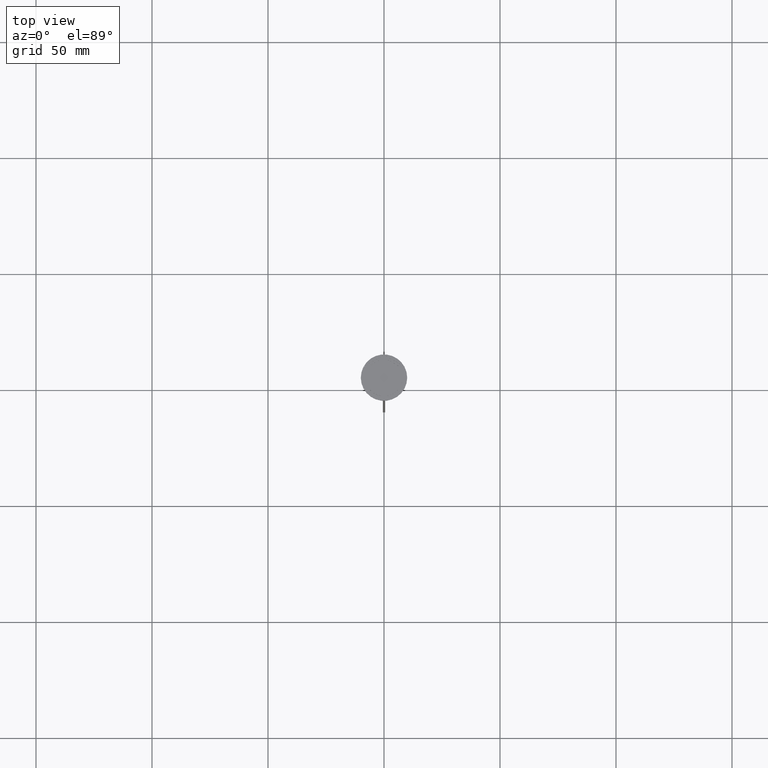
[diagram: clean part render]
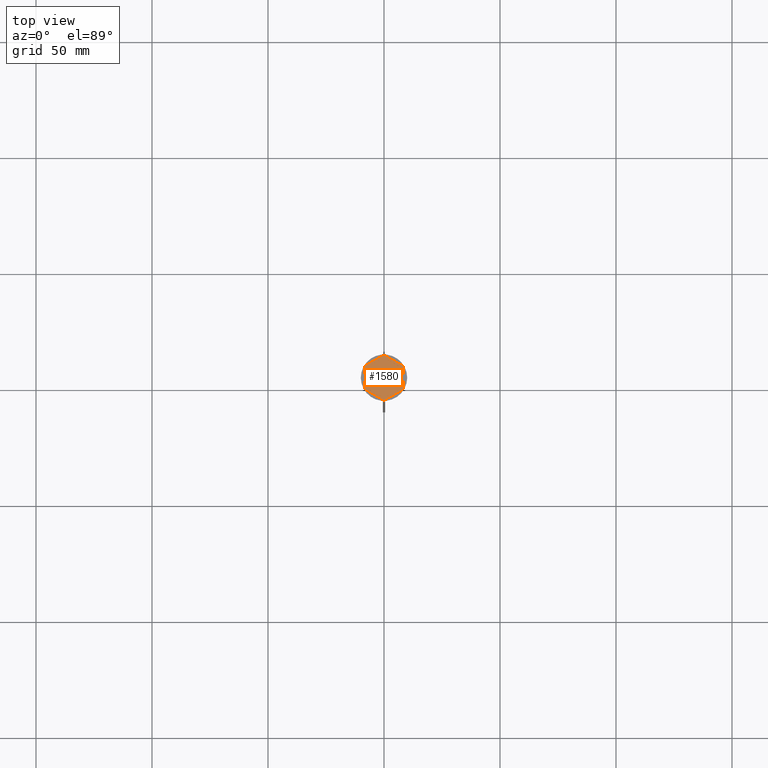
[diagram: same view with one face highlighted and labeled with its STEP entity id]
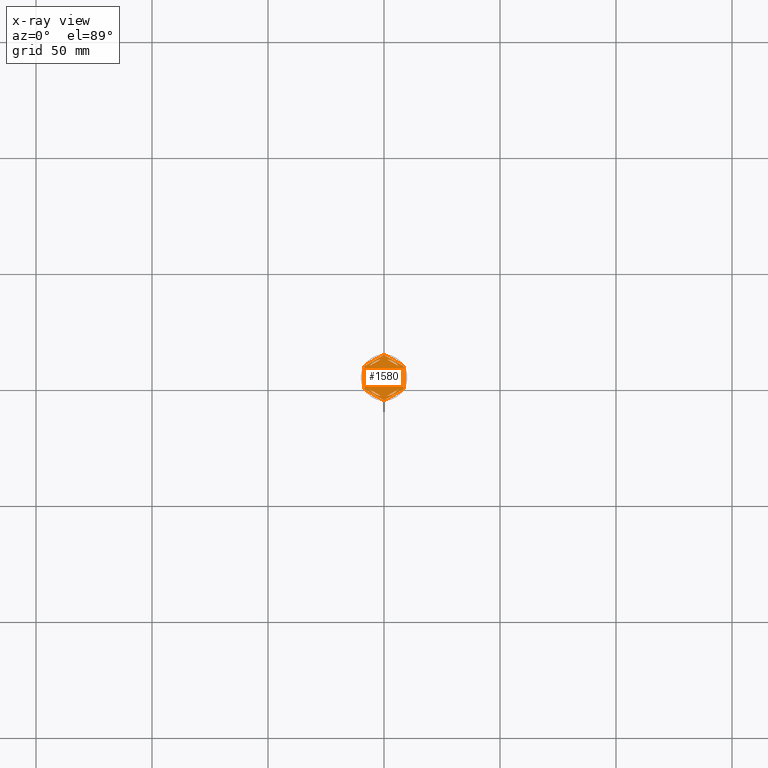
[diagram: x-ray of the same camera — body ghosted, the highlighted face saturated]
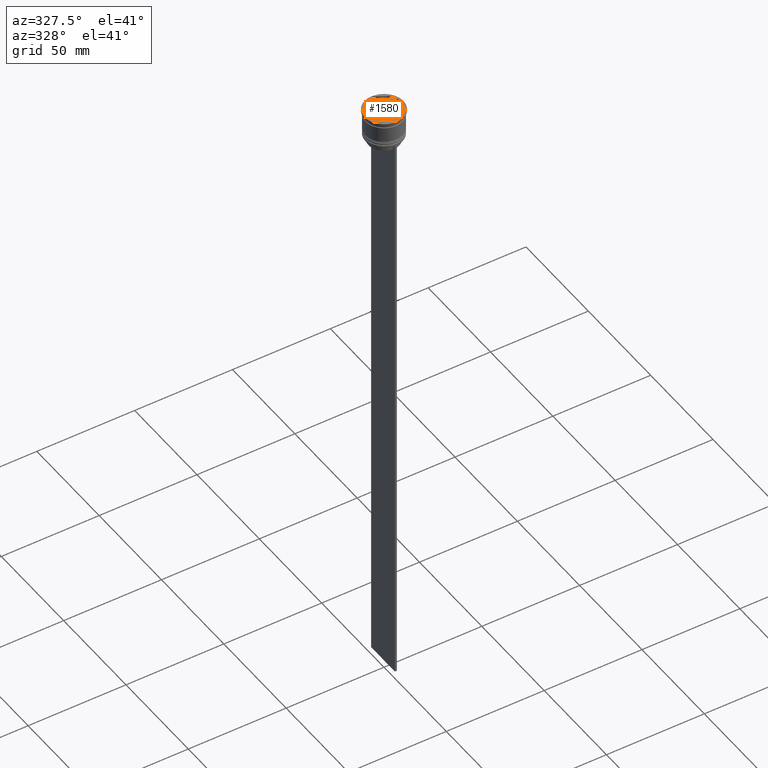
[diagram: same view with one face highlighted and labeled with its STEP entity id]
A machine part, top view. The second image highlights one B-rep face of the part: STEP entity #1580.
The next image is the same camera in x-ray: the body ghosted, the highlighted face saturated — about 0% of this face is hidden behind the body in this view.
A second angle (auxiliary view) of the same face is appended — the face is thin or edge-on in the first view.
In plain terms, the highlighted planar face has unit normal (0, 0, 1).
Its self-contained STEP definition (entity closure, byte-faithful):
#7 = CIRCLE ( 'NONE', #2391, 9.699999999999990408 ) ;
#8 = EDGE_CURVE ( 'NONE', #2185, #1926, #1032, .T. ) ;
#13 = ORIENTED_EDGE ( 'NONE', *, *, #237, .T. ) ;
#19 = AXIS2_PLACEMENT_3D ( 'NONE', #1886, #1666, #240 ) ;
#21 = CARTESIAN_POINT ( 'NONE',  ( 0.000000000000000000, 0.000000000000000000, -1.000000000000000000 ) ) ;
#22 = VERTEX_POINT ( 'NONE', #2213 ) ;
#42 = PLANE ( 'NONE',  #1484 ) ;
#43 = CARTESIAN_POINT ( 'NONE',  ( 0.000000000000000000, 0.000000000000000000, -1.000000000000000000 ) ) ;
#49 = ORIENTED_EDGE ( 'NONE', *, *, #510, .F. ) ;
#55 = CIRCLE ( 'NONE', #2307, 8.000000000000000000 ) ;
#59 = EDGE_CURVE ( 'NONE', #551, #1256, #1467, .T. ) ;
#74 = CARTESIAN_POINT ( 'NONE',  ( -7.500000000000000000, 2.783882181415010759, -1.000000000000000888 ) ) ;
#77 = DIRECTION ( 'NONE',  ( 0.8660254037844387076, -0.4999999999999997780, 0.000000000000000000 ) ) ;
#84 = DIRECTION ( 'NONE',  ( -0.000000000000000000, -0.000000000000000000, -1.000000000000000000 ) ) ;
#92 = CIRCLE ( 'NONE', #1956, 9.699999999999990408 ) ;
#94 = VECTOR ( 'NONE', #703, 1000.000000000000000 ) ;
#107 = DIRECTION ( 'NONE',  ( 1.000000000000000000, 2.486899575160350651E-14, 0.000000000000000000 ) ) ;
#124 = DIRECTION ( 'NONE',  ( 1.000000000000000000, 0.000000000000000000, 0.000000000000000000 ) ) ;
#145 = CARTESIAN_POINT ( 'NONE',  ( 1.339087309751762156, -7.887131619090794743, -1.000000000000000888 ) ) ;
#182 = LINE ( 'NONE', #1007, #2218 ) ;
#197 = CARTESIAN_POINT ( 'NONE',  ( -0.2027787310304009494, 9.697880221277303647, -1.000000000000000000 ) ) ;
#214 = FACE_BOUND ( 'NONE', #914, .T. ) ;
#219 = DIRECTION ( 'NONE',  ( 0.8660254037844387076, 0.5000000000000001110, -0.000000000000000000 ) ) ;
#224 = VECTOR ( 'NONE', #1945, 1000.000000000000114 ) ;
#225 = CIRCLE ( 'NONE', #1826, 8.000000000000000000 ) ;
#237 = EDGE_CURVE ( 'NONE', #1076, #1186, #2623, .T. ) ;
#240 = DIRECTION ( 'NONE',  ( 1.000000000000000000, 0.000000000000000000, 0.000000000000000000 ) ) ;
#246 = EDGE_CURVE ( 'NONE', #22, #2005, #1438, .T. ) ;
#269 = CARTESIAN_POINT ( 'NONE',  ( 7.500000000000000000, -4.330127018922195425, -1.000000000000000888 ) ) ;
#271 = CARTESIAN_POINT ( 'NONE',  ( 8.500000000000000000, 4.673328578219146934, -1.000000000000000000 ) ) ;
#308 = CARTESIAN_POINT ( 'NONE',  ( -1.301042606982605321E-15, -8.660254037844387298, -1.000000000000000888 ) ) ;
#314 = DIRECTION ( 'NONE',  ( 0.000000000000000000, 0.000000000000000000, 1.000000000000000000 ) ) ;
#323 = LINE ( 'NONE', #1181, #1228 ) ;
#349 = AXIS2_PLACEMENT_3D ( 'NONE', #1723, #1995, #107 ) ;
#355 = CARTESIAN_POINT ( 'NONE',  ( -8.297221268969593666, -5.024551643058157602, -1.000000000000000000 ) ) ;
#437 = CIRCLE ( 'NONE', #349, 9.699999999999990408 ) ;
#441 = VECTOR ( 'NONE', #1457, 1000.000000000000000 ) ;
#447 = FACE_BOUND ( 'NONE', #1792, .T. ) ;
#489 = CARTESIAN_POINT ( 'NONE',  ( 8.729740977282959667E-16, -9.814954576223637872, -1.000000000000000000 ) ) ;
#497 = DIRECTION ( 'NONE',  ( 1.000000000000000000, 0.000000000000000000, 0.000000000000000000 ) ) ;
#505 = VERTEX_POINT ( 'NONE', #922 ) ;
#510 = EDGE_CURVE ( 'NONE', #2260, #1186, #437, .T. ) ;
#536 = DIRECTION ( 'NONE',  ( 1.000000000000000000, 0.000000000000000000, 0.000000000000000000 ) ) ;
#538 = EDGE_CURVE ( 'NONE', #551, #608, #7, .T. ) ;
#544 = CARTESIAN_POINT ( 'NONE',  ( 7.500000000000000000, -2.783882181415009427, -1.000000000000000888 ) ) ;
#550 = LINE ( 'NONE', #2021, #2483 ) ;
#551 = VERTEX_POINT ( 'NONE', #1771 ) ;
#565 = EDGE_CURVE ( 'NONE', #505, #1035, #876, .T. ) ;
#597 = DIRECTION ( 'NONE',  ( -0.8660254037844388186, 0.4999999999999997224, 0.000000000000000000 ) ) ;
#599 = ORIENTED_EDGE ( 'NONE', *, *, #1137, .F. ) ;
#608 = VERTEX_POINT ( 'NONE', #1339 ) ;
#634 = DIRECTION ( 'NONE',  ( 1.000000000000000000, 0.000000000000000000, 0.000000000000000000 ) ) ;
#640 = LINE ( 'NONE', #1192, #1960 ) ;
#659 = EDGE_CURVE ( 'NONE', #777, #1185, #225, .T. ) ;
#681 = LINE ( 'NONE', #269, #94 ) ;
#688 = ORIENTED_EDGE ( 'NONE', *, *, #2323, .F. ) ;
#695 = ORIENTED_EDGE ( 'NONE', *, *, #2241, .F. ) ;
#698 = CARTESIAN_POINT ( 'NONE',  ( -8.500000000000000000, -4.907477288111819824, -1.000000000000000000 ) ) ;
#699 = EDGE_LOOP ( 'NONE', ( #1661, #688 ) ) ;
#703 = DIRECTION ( 'NONE',  ( -2.003086131649545704E-16, -1.000000000000000000, 0.000000000000000000 ) ) ;
#730 = DIRECTION ( 'NONE',  ( 0.8660254037844385966, 0.5000000000000000000, 0.000000000000000000 ) ) ;
#747 = VECTOR ( 'NONE', #597, 1000.000000000000000 ) ;
#773 = DIRECTION ( 'NONE',  ( -0.8660254037844387076, -0.4999999999999997780, 0.000000000000000000 ) ) ;
#777 = VERTEX_POINT ( 'NONE', #1352 ) ;
#801 = AXIS2_PLACEMENT_3D ( 'NONE', #1285, #1476, #1917 ) ;
#807 = CARTESIAN_POINT ( 'NONE',  ( -6.160912690248241397, 5.103249437675783540, -1.000000000000000888 ) ) ;
#817 = VERTEX_POINT ( 'NONE', #1209 ) ;
#837 = CARTESIAN_POINT ( 'NONE',  ( 6.160912690248236068, -5.103249437675787981, -1.000000000000000888 ) ) ;
#857 = ORIENTED_EDGE ( 'NONE', *, *, #659, .F. ) ;
#858 = VERTEX_POINT ( 'NONE', #1434 ) ;
#860 = FACE_BOUND ( 'NONE', #1523, .T. ) ;
#872 = DIRECTION ( 'NONE',  ( 0.000000000000000000, 0.000000000000000000, 1.000000000000000000 ) ) ;
#876 = CIRCLE ( 'NONE', #2516, 8.000000000000000000 ) ;
#908 = ORIENTED_EDGE ( 'NONE', *, *, #1119, .F. ) ;
#914 = EDGE_LOOP ( 'NONE', ( #2198, #1510 ) ) ;
#922 = CARTESIAN_POINT ( 'NONE',  ( -8.000000000000000000, 0.000000000000000000, -1.000000000000000000 ) ) ;
#924 = CARTESIAN_POINT ( 'NONE',  ( -7.500000000000000000, -2.783882181415010759, -1.000000000000000888 ) ) ;
#931 = DIRECTION ( 'NONE',  ( 1.000000000000000000, 0.000000000000000000, 0.000000000000000000 ) ) ;
#952 = ORIENTED_EDGE ( 'NONE', *, *, #1717, .T. ) ;
#955 = CARTESIAN_POINT ( 'NONE',  ( -8.500000000000000000, -4.673328578219146934, -1.000000000000000000 ) ) ;
#968 = EDGE_CURVE ( 'NONE', #817, #1769, #681, .T. ) ;
#980 = DIRECTION ( 'NONE',  ( 0.000000000000000000, 0.000000000000000000, 1.000000000000000000 ) ) ;
#981 = CARTESIAN_POINT ( 'NONE',  ( 0.000000000000000000, 0.000000000000000000, -1.000000000000000000 ) ) ;
#987 = ORIENTED_EDGE ( 'NONE', *, *, #2174, .T. ) ;
#990 = LINE ( 'NONE', #1238, #441 ) ;
#998 = CARTESIAN_POINT ( 'NONE',  ( 8.297221268969593666, 5.024551643058155825, -1.000000000000000000 ) ) ;
#999 = VECTOR ( 'NONE', #77, 1000.000000000000114 ) ;
#1005 = AXIS2_PLACEMENT_3D ( 'NONE', #1919, #872, #2551 ) ;
#1007 = CARTESIAN_POINT ( 'NONE',  ( 8.673617379884035472E-16, 8.660254037844385522, -1.000000000000000888 ) ) ;
#1029 = EDGE_LOOP ( 'NONE', ( #1551, #1636 ) ) ;
#1032 = CIRCLE ( 'NONE', #2209, 8.000000000000000000 ) ;
#1035 = VERTEX_POINT ( 'NONE', #924 ) ;
#1052 = FACE_OUTER_BOUND ( 'NONE', #1969, .T. ) ;
#1055 = DIRECTION ( 'NONE',  ( 1.000000000000000000, 0.000000000000000000, 0.000000000000000000 ) ) ;
#1069 = ORIENTED_EDGE ( 'NONE', *, *, #565, .F. ) ;
#1076 = VERTEX_POINT ( 'NONE', #998 ) ;
#1086 = CIRCLE ( 'NONE', #1791, 8.000000000000000000 ) ;
#1093 = DIRECTION ( 'NONE',  ( 1.000000000000000000, 0.000000000000000000, 0.000000000000000000 ) ) ;
#1119 = EDGE_CURVE ( 'NONE', #858, #2604, #2055, .T. ) ;
#1128 = VECTOR ( 'NONE', #730, 1000.000000000000227 ) ;
#1137 = EDGE_CURVE ( 'NONE', #2385, #2499, #1086, .T. ) ;
#1141 = DIRECTION ( 'NONE',  ( 1.000000000000000000, 0.000000000000000000, 0.000000000000000000 ) ) ;
#1153 = CARTESIAN_POINT ( 'NONE',  ( 0.000000000000000000, 0.000000000000000000, -1.000000000000000000 ) ) ;
#1173 = EDGE_CURVE ( 'NONE', #1076, #2071, #1305, .T. ) ;
#1181 = CARTESIAN_POINT ( 'NONE',  ( 8.500000000000000000, -4.907477288111818936, -1.000000000000000000 ) ) ;
#1184 = CARTESIAN_POINT ( 'NONE',  ( 0.000000000000000000, 0.000000000000000000, -1.000000000000000000 ) ) ;
#1185 = VERTEX_POINT ( 'NONE', #1272 ) ;
#1186 = VERTEX_POINT ( 'NONE', #2538 ) ;
#1192 = CARTESIAN_POINT ( 'NONE',  ( 7.500000000000001776, 4.330127018922192761, -1.000000000000000888 ) ) ;
#1209 = CARTESIAN_POINT ( 'NONE',  ( 7.500000000000001776, 2.783882181415006762, -1.000000000000000888 ) ) ;
#1228 = VECTOR ( 'NONE', #1730, 1000.000000000000000 ) ;
#1238 = CARTESIAN_POINT ( 'NONE',  ( -7.500000000000000000, 4.330127018922190985, -1.000000000000000888 ) ) ;
#1256 = VERTEX_POINT ( 'NONE', #955 ) ;
#1264 = CARTESIAN_POINT ( 'NONE',  ( 0.000000000000000000, 0.000000000000000000, -1.000000000000000000 ) ) ;
#1270 = DIRECTION ( 'NONE',  ( 0.000000000000000000, 0.000000000000000000, 1.000000000000000000 ) ) ;
#1272 = CARTESIAN_POINT ( 'NONE',  ( 1.339087309751760380, 7.887131619090794743, -1.000000000000000888 ) ) ;
#1275 = LINE ( 'NONE', #1681, #224 ) ;
#1285 = CARTESIAN_POINT ( 'NONE',  ( 0.000000000000000000, 0.000000000000000000, -1.000000000000000000 ) ) ;
#1305 = CIRCLE ( 'NONE', #801, 9.699999999999990408 ) ;
#1339 = CARTESIAN_POINT ( 'NONE',  ( -8.297221268969593666, 5.024551643058155825, -1.000000000000000000 ) ) ;
#1344 = CARTESIAN_POINT ( 'NONE',  ( -1.339087309751759047, 7.887131619090796519, -1.000000000000000888 ) ) ;
#1352 = CARTESIAN_POINT ( 'NONE',  ( 6.160912690248237844, 5.103249437675785316, -1.000000000000000888 ) ) ;
#1380 = EDGE_CURVE ( 'NONE', #858, #2005, #2347, .T. ) ;
#1381 = ORIENTED_EDGE ( 'NONE', *, *, #1997, .F. ) ;
#1429 = DIRECTION ( 'NONE',  ( 0.000000000000000000, -1.000000000000000000, 0.000000000000000000 ) ) ;
#1434 = CARTESIAN_POINT ( 'NONE',  ( 0.2027787310304044188, -9.697880221277303647, -1.000000000000000000 ) ) ;
#1438 = CIRCLE ( 'NONE', #1516, 9.699999999999990408 ) ;
#1457 = DIRECTION ( 'NONE',  ( 0.000000000000000000, 1.000000000000000000, 0.000000000000000000 ) ) ;
#1467 = LINE ( 'NONE', #2658, #2336 ) ;
#1476 = DIRECTION ( 'NONE',  ( -0.000000000000000000, -0.000000000000000000, -1.000000000000000000 ) ) ;
#1484 = AXIS2_PLACEMENT_3D ( 'NONE', #21, #1270, #1676 ) ;
#1491 = DIRECTION ( 'NONE',  ( 1.000000000000000000, 0.000000000000000000, 0.000000000000000000 ) ) ;
#1508 = DIRECTION ( 'NONE',  ( 0.000000000000000000, 0.000000000000000000, 1.000000000000000000 ) ) ;
#1510 = ORIENTED_EDGE ( 'NONE', *, *, #968, .F. ) ;
#1516 = AXIS2_PLACEMENT_3D ( 'NONE', #1264, #84, #1093 ) ;
#1523 = EDGE_LOOP ( 'NONE', ( #857, #1640 ) ) ;
#1538 = CARTESIAN_POINT ( 'NONE',  ( 8.297221268969593666, -5.024551643058152273, -1.000000000000000000 ) ) ;
#1551 = ORIENTED_EDGE ( 'NONE', *, *, #2497, .F. ) ;
#1568 = ORIENTED_EDGE ( 'NONE', *, *, #59, .T. ) ;
#1579 = ORIENTED_EDGE ( 'NONE', *, *, #2635, .T. ) ;
#1580 = ADVANCED_FACE ( 'NONE', ( #860, #214, #2306, #2534, #447, #2674, #1052 ), #42, .T. ) ;
#1585 = EDGE_CURVE ( 'NONE', #1769, #817, #1820, .T. ) ;
#1626 = ORIENTED_EDGE ( 'NONE', *, *, #1380, .T. ) ;
#1636 = ORIENTED_EDGE ( 'NONE', *, *, #2529, .F. ) ;
#1640 = ORIENTED_EDGE ( 'NONE', *, *, #2395, .F. ) ;
#1658 = CARTESIAN_POINT ( 'NONE',  ( -6.160912690248237844, -5.103249437675787092, -1.000000000000000888 ) ) ;
#1661 = ORIENTED_EDGE ( 'NONE', *, *, #8, .F. ) ;
#1662 = CARTESIAN_POINT ( 'NONE',  ( 8.500000000000000000, 4.907477288111819824, -1.000000000000000000 ) ) ;
#1666 = DIRECTION ( 'NONE',  ( 0.000000000000000000, 0.000000000000000000, 1.000000000000000000 ) ) ;
#1676 = DIRECTION ( 'NONE',  ( 1.000000000000000000, 0.000000000000000000, -0.000000000000000000 ) ) ;
#1681 = CARTESIAN_POINT ( 'NONE',  ( -7.500000000000000000, -4.330127018922193649, -1.000000000000000888 ) ) ;
#1717 = EDGE_CURVE ( 'NONE', #2229, #2604, #1937, .T. ) ;
#1723 = CARTESIAN_POINT ( 'NONE',  ( 0.000000000000000000, 0.000000000000000000, -1.000000000000000000 ) ) ;
#1730 = DIRECTION ( 'NONE',  ( 0.000000000000000000, 1.000000000000000000, 0.000000000000000000 ) ) ;
#1744 = CARTESIAN_POINT ( 'NONE',  ( 0.000000000000000000, 0.000000000000000000, -1.000000000000000000 ) ) ;
#1769 = VERTEX_POINT ( 'NONE', #544 ) ;
#1771 = CARTESIAN_POINT ( 'NONE',  ( -8.500000000000000000, 4.673328578219146934, -1.000000000000000000 ) ) ;
#1776 = ORIENTED_EDGE ( 'NONE', *, *, #246, .F. ) ;
#1791 = AXIS2_PLACEMENT_3D ( 'NONE', #2311, #2321, #1491 ) ;
#1792 = EDGE_LOOP ( 'NONE', ( #695, #2159, #1069 ) ) ;
#1806 = EDGE_CURVE ( 'NONE', #2229, #1256, #92, .T. ) ;
#1820 = CIRCLE ( 'NONE', #19, 8.000000000000000000 ) ;
#1826 = AXIS2_PLACEMENT_3D ( 'NONE', #2456, #2485, #634 ) ;
#1827 = ORIENTED_EDGE ( 'NONE', *, *, #538, .F. ) ;
#1878 = DIRECTION ( 'NONE',  ( -0.000000000000000000, -0.000000000000000000, -1.000000000000000000 ) ) ;
#1886 = CARTESIAN_POINT ( 'NONE',  ( 0.000000000000000000, 0.000000000000000000, -1.000000000000000000 ) ) ;
#1917 = DIRECTION ( 'NONE',  ( 1.000000000000000000, 0.000000000000000000, 0.000000000000000000 ) ) ;
#1919 = CARTESIAN_POINT ( 'NONE',  ( 0.000000000000000000, 0.000000000000000000, -1.000000000000000000 ) ) ;
#1926 = VERTEX_POINT ( 'NONE', #807 ) ;
#1937 = LINE ( 'NONE', #698, #999 ) ;
#1945 = DIRECTION ( 'NONE',  ( -0.8660254037844384856, 0.5000000000000002220, 0.000000000000000000 ) ) ;
#1956 = AXIS2_PLACEMENT_3D ( 'NONE', #2384, #1981, #497 ) ;
#1960 = VECTOR ( 'NONE', #2032, 1000.000000000000000 ) ;
#1969 = EDGE_LOOP ( 'NONE', ( #1579, #2077, #13, #49, #987, #1827, #1568, #2407, #952, #908, #1626, #1776 ) ) ;
#1981 = DIRECTION ( 'NONE',  ( -0.000000000000000000, -0.000000000000000000, -1.000000000000000000 ) ) ;
#1995 = DIRECTION ( 'NONE',  ( -0.000000000000000000, -0.000000000000000000, -1.000000000000000000 ) ) ;
#1997 = EDGE_CURVE ( 'NONE', #2499, #2385, #1275, .T. ) ;
#2003 = DIRECTION ( 'NONE',  ( -0.8660254037844387076, -0.4999999999999997780, 0.000000000000000000 ) ) ;
#2005 = VERTEX_POINT ( 'NONE', #1538 ) ;
#2010 = VERTEX_POINT ( 'NONE', #74 ) ;
#2021 = CARTESIAN_POINT ( 'NONE',  ( 0.000000000000000000, 9.814954576223636096, -1.000000000000000000 ) ) ;
#2032 = DIRECTION ( 'NONE',  ( 0.8660254037844387076, -0.4999999999999998890, 0.000000000000000000 ) ) ;
#2055 = CIRCLE ( 'NONE', #2565, 9.699999999999990408 ) ;
#2071 = VERTEX_POINT ( 'NONE', #271 ) ;
#2077 = ORIENTED_EDGE ( 'NONE', *, *, #1173, .F. ) ;
#2159 = ORIENTED_EDGE ( 'NONE', *, *, #2334, .F. ) ;
#2174 = EDGE_CURVE ( 'NONE', #2260, #608, #550, .T. ) ;
#2185 = VERTEX_POINT ( 'NONE', #1344 ) ;
#2198 = ORIENTED_EDGE ( 'NONE', *, *, #1585, .F. ) ;
#2209 = AXIS2_PLACEMENT_3D ( 'NONE', #981, #314, #536 ) ;
#2213 = CARTESIAN_POINT ( 'NONE',  ( 8.500000000000000000, -4.673328578219146934, -1.000000000000000000 ) ) ;
#2218 = VECTOR ( 'NONE', #219, 999.9999999999998863 ) ;
#2229 = VERTEX_POINT ( 'NONE', #355 ) ;
#2241 = EDGE_CURVE ( 'NONE', #2010, #505, #55, .T. ) ;
#2260 = VERTEX_POINT ( 'NONE', #197 ) ;
#2288 = EDGE_LOOP ( 'NONE', ( #599, #1381 ) ) ;
#2306 = FACE_BOUND ( 'NONE', #1029, .T. ) ;
#2307 = AXIS2_PLACEMENT_3D ( 'NONE', #1184, #980, #931 ) ;
#2311 = CARTESIAN_POINT ( 'NONE',  ( 0.000000000000000000, 0.000000000000000000, -1.000000000000000000 ) ) ;
#2321 = DIRECTION ( 'NONE',  ( 0.000000000000000000, 0.000000000000000000, 1.000000000000000000 ) ) ;
#2323 = EDGE_CURVE ( 'NONE', #1926, #2185, #182, .T. ) ;
#2334 = EDGE_CURVE ( 'NONE', #1035, #2010, #990, .T. ) ;
#2336 = VECTOR ( 'NONE', #1429, 1000.000000000000000 ) ;
#2347 = LINE ( 'NONE', #489, #1128 ) ;
#2349 = CARTESIAN_POINT ( 'NONE',  ( -1.339087309751766819, -7.887131619090794743, -1.000000000000000888 ) ) ;
#2376 = CARTESIAN_POINT ( 'NONE',  ( -0.2027787310304044188, -9.697880221277303647, -1.000000000000000000 ) ) ;
#2381 = VERTEX_POINT ( 'NONE', #837 ) ;
#2384 = CARTESIAN_POINT ( 'NONE',  ( 0.000000000000000000, 0.000000000000000000, -1.000000000000000000 ) ) ;
#2385 = VERTEX_POINT ( 'NONE', #1658 ) ;
#2391 = AXIS2_PLACEMENT_3D ( 'NONE', #1744, #2571, #1141 ) ;
#2395 = EDGE_CURVE ( 'NONE', #1185, #777, #640, .T. ) ;
#2407 = ORIENTED_EDGE ( 'NONE', *, *, #1806, .F. ) ;
#2456 = CARTESIAN_POINT ( 'NONE',  ( 0.000000000000000000, 0.000000000000000000, -1.000000000000000000 ) ) ;
#2483 = VECTOR ( 'NONE', #2003, 1000.000000000000114 ) ;
#2485 = DIRECTION ( 'NONE',  ( 0.000000000000000000, 0.000000000000000000, 1.000000000000000000 ) ) ;
#2497 = EDGE_CURVE ( 'NONE', #2636, #2381, #2563, .T. ) ;
#2499 = VERTEX_POINT ( 'NONE', #2349 ) ;
#2504 = LINE ( 'NONE', #308, #2524 ) ;
#2516 = AXIS2_PLACEMENT_3D ( 'NONE', #1153, #1508, #124 ) ;
#2524 = VECTOR ( 'NONE', #773, 1000.000000000000114 ) ;
#2529 = EDGE_CURVE ( 'NONE', #2381, #2636, #2504, .T. ) ;
#2534 = FACE_BOUND ( 'NONE', #2288, .T. ) ;
#2538 = CARTESIAN_POINT ( 'NONE',  ( 0.2027787310304000890, 9.697880221277303647, -1.000000000000000000 ) ) ;
#2551 = DIRECTION ( 'NONE',  ( 1.000000000000000000, 0.000000000000000000, 0.000000000000000000 ) ) ;
#2563 = CIRCLE ( 'NONE', #1005, 8.000000000000000000 ) ;
#2565 = AXIS2_PLACEMENT_3D ( 'NONE', #43, #1878, #1055 ) ;
#2571 = DIRECTION ( 'NONE',  ( -0.000000000000000000, -0.000000000000000000, -1.000000000000000000 ) ) ;
#2604 = VERTEX_POINT ( 'NONE', #2376 ) ;
#2623 = LINE ( 'NONE', #1662, #747 ) ;
#2635 = EDGE_CURVE ( 'NONE', #22, #2071, #323, .T. ) ;
#2636 = VERTEX_POINT ( 'NONE', #145 ) ;
#2658 = CARTESIAN_POINT ( 'NONE',  ( -8.500000000000000000, 4.907477288111818936, -1.000000000000000000 ) ) ;
#2674 = FACE_BOUND ( 'NONE', #699, .T. ) ;